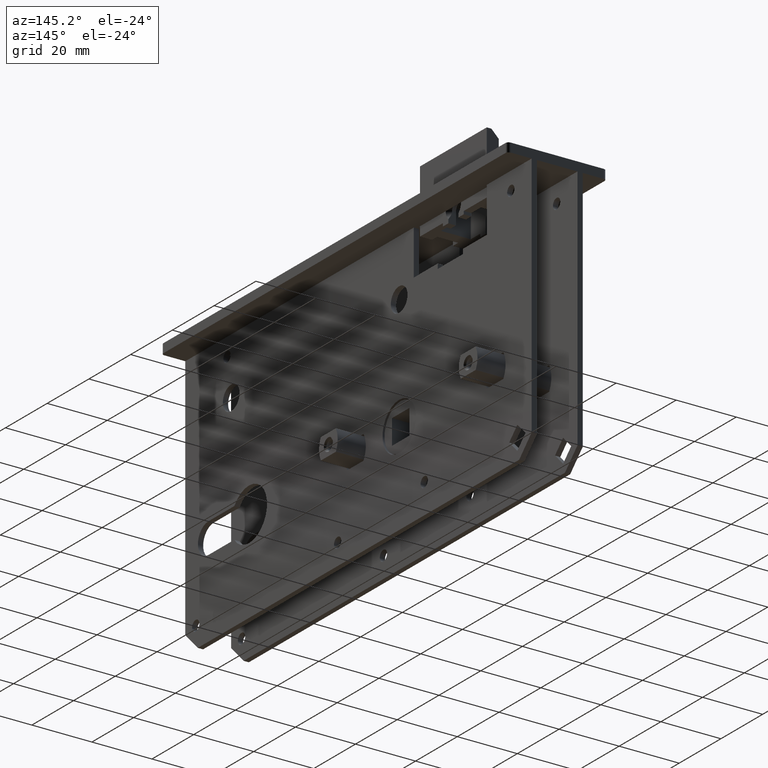
[diagram: clean part render]
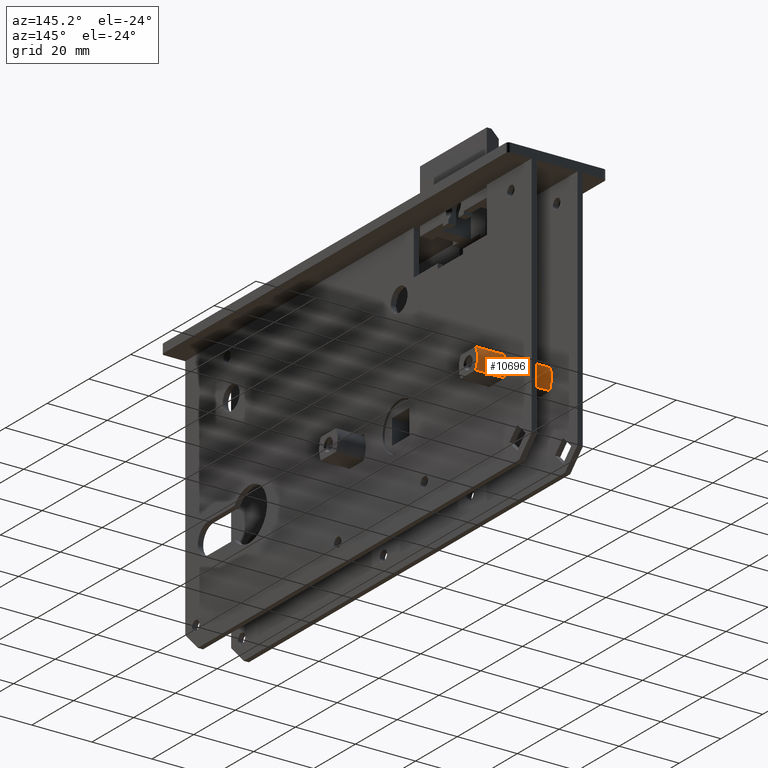
[diagram: same view with one face highlighted and labeled with its STEP entity id]
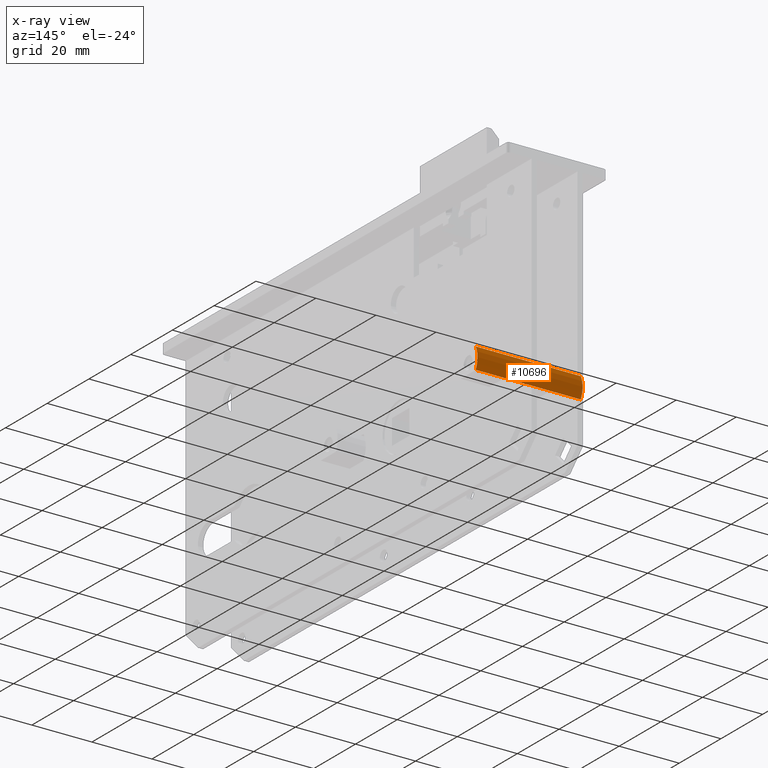
[diagram: x-ray of the same camera — body ghosted, the highlighted face saturated]
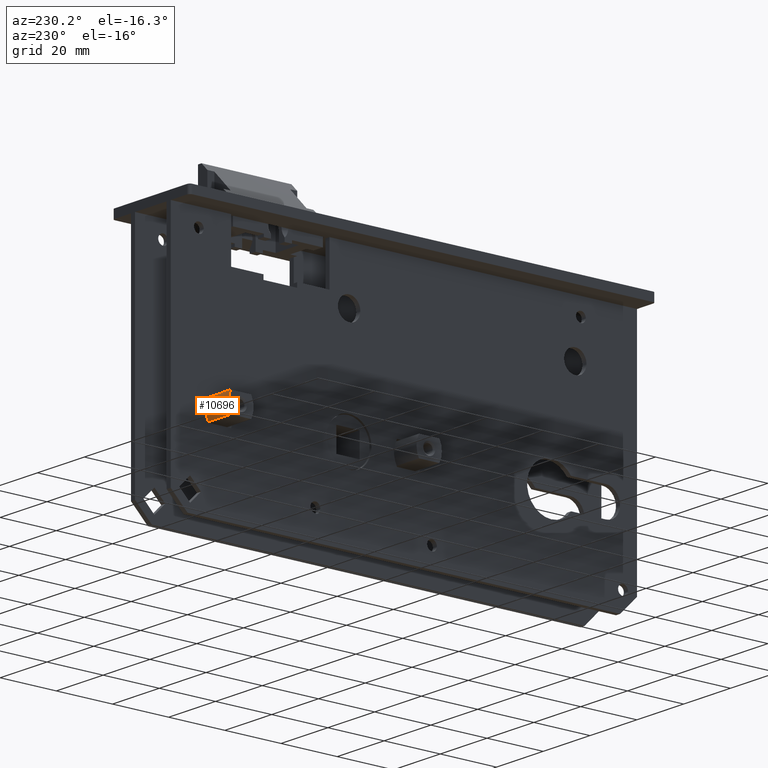
[diagram: same view with one face highlighted and labeled with its STEP entity id]
A machine part, auxiliary view. The second image highlights one B-rep face of the part: STEP entity #10696.
The next image is the same camera in x-ray: the body ghosted, the highlighted face saturated — about 0% of this face is hidden behind the body in this view.
A second angle (auxiliary view) of the same face is appended — the face is thin or edge-on in the first view.
In plain terms, the highlighted cylindrical surface (edge-blend (fillet) strip) has radius 7.5 mm, axis along (1, 0, 0).
Its self-contained STEP definition (entity closure, byte-faithful):
#508 = CIRCLE ( 'NONE', #9461, 7.500000000000007105 ) ;
#869 = LINE ( 'NONE', #12186, #9402 ) ;
#942 = AXIS2_PLACEMENT_3D ( 'NONE', #5091, #12618, #3307 ) ;
#1170 = VERTEX_POINT ( 'NONE', #16364 ) ;
#1853 = AXIS2_PLACEMENT_3D ( 'NONE', #17309, #18957, #16032 ) ;
#2811 = EDGE_LOOP ( 'NONE', ( #17680, #5328, #15160, #14012 ) ) ;
#2867 = CYLINDRICAL_SURFACE ( 'NONE', #1853, 7.500000000000000000 ) ;
#3307 = DIRECTION ( 'NONE',  ( 0.000000000000000000, 0.000000000000000000, -1.000000000000000000 ) ) ;
#4610 = DIRECTION ( 'NONE',  ( 1.000000000000000000, 0.000000000000000000, 0.000000000000000000 ) ) ;
#5004 = LINE ( 'NONE', #5030, #18531 ) ;
#5030 = CARTESIAN_POINT ( 'NONE',  ( -37.90175425099136675, 69.13324958071078186, -61.99999999999998579 ) ) ;
#5091 = CARTESIAN_POINT ( 'NONE',  ( 17.49999999999998224, 62.49999999999997158, -58.49999999999999289 ) ) ;
#5155 = DIRECTION ( 'NONE',  ( 1.000000000000000000, 0.000000000000000000, 0.000000000000000000 ) ) ;
#5157 = CARTESIAN_POINT ( 'NONE',  ( 17.49999999999998224, 69.13324958071078186, -61.99999999999998579 ) ) ;
#5328 = ORIENTED_EDGE ( 'NONE', *, *, #12030, .T. ) ;
#7126 = CARTESIAN_POINT ( 'NONE',  ( 17.49999999999998224, 69.13324958071078186, -54.99999999999999289 ) ) ;
#8479 = FACE_OUTER_BOUND ( 'NONE', #2811, .T. ) ;
#8879 = CARTESIAN_POINT ( 'NONE',  ( -17.49999999999998934, 62.49999999999997158, -58.49999999999999289 ) ) ;
#9402 = VECTOR ( 'NONE', #4610, 1000.000000000000000 ) ;
#9461 = AXIS2_PLACEMENT_3D ( 'NONE', #8879, #12127, #13785 ) ;
#10696 = ADVANCED_FACE ( 'NONE', ( #8479 ), #2867, .T. ) ;
#12030 = EDGE_CURVE ( 'NONE', #17392, #16322, #869, .T. ) ;
#12127 = DIRECTION ( 'NONE',  ( -1.000000000000000000, 3.226642131554167329E-16, -0.000000000000000000 ) ) ;
#12186 = CARTESIAN_POINT ( 'NONE',  ( -37.90175425099136675, 69.13324958071078186, -54.99999999999999289 ) ) ;
#12618 = DIRECTION ( 'NONE',  ( 1.000000000000000000, 0.000000000000000000, 0.000000000000000000 ) ) ;
#12967 = CIRCLE ( 'NONE', #942, 7.500000000000000000 ) ;
#13785 = DIRECTION ( 'NONE',  ( 4.625929269271480983E-16, 1.000000000000000000, 0.000000000000000000 ) ) ;
#14012 = ORIENTED_EDGE ( 'NONE', *, *, #19635, .F. ) ;
#15160 = ORIENTED_EDGE ( 'NONE', *, *, #15584, .F. ) ;
#15584 = EDGE_CURVE ( 'NONE', #19328, #16322, #12967, .T. ) ;
#15989 = EDGE_CURVE ( 'NONE', #17392, #1170, #508, .T. ) ;
#16032 = DIRECTION ( 'NONE',  ( 0.000000000000000000, 0.000000000000000000, -1.000000000000000000 ) ) ;
#16322 = VERTEX_POINT ( 'NONE', #7126 ) ;
#16364 = CARTESIAN_POINT ( 'NONE',  ( -17.49999999999998934, 69.13324958071078186, -61.99999999999998579 ) ) ;
#17309 = CARTESIAN_POINT ( 'NONE',  ( -37.90175425099136675, 62.49999999999997158, -58.49999999999999289 ) ) ;
#17392 = VERTEX_POINT ( 'NONE', #19920 ) ;
#17680 = ORIENTED_EDGE ( 'NONE', *, *, #15989, .F. ) ;
#18531 = VECTOR ( 'NONE', #5155, 1000.000000000000000 ) ;
#18957 = DIRECTION ( 'NONE',  ( 1.000000000000000000, 0.000000000000000000, 0.000000000000000000 ) ) ;
#19328 = VERTEX_POINT ( 'NONE', #5157 ) ;
#19635 = EDGE_CURVE ( 'NONE', #1170, #19328, #5004, .T. ) ;
#19920 = CARTESIAN_POINT ( 'NONE',  ( -17.49999999999998579, 69.13324958071078186, -54.99999999999999289 ) ) ;